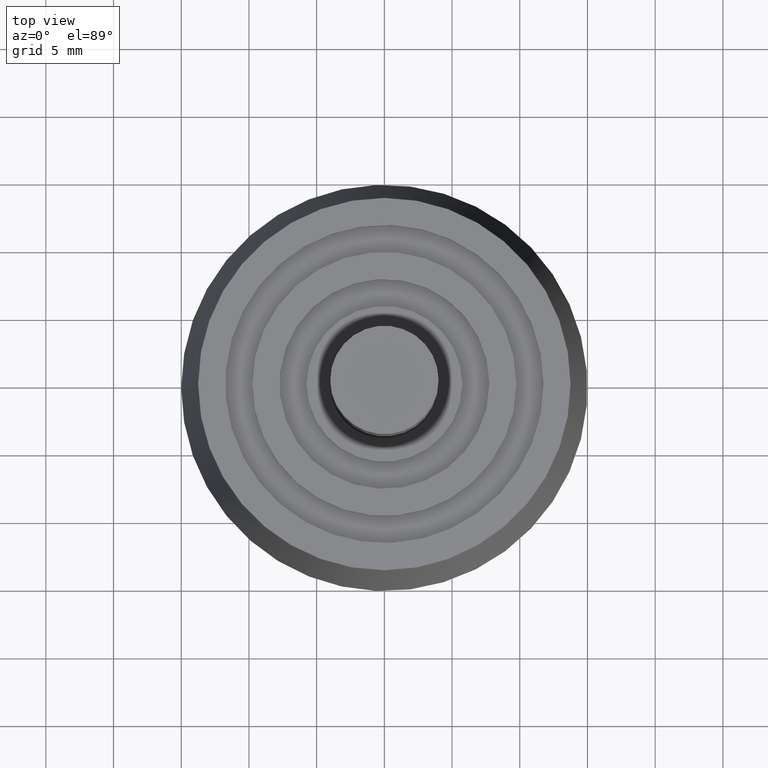
[diagram: clean part render]
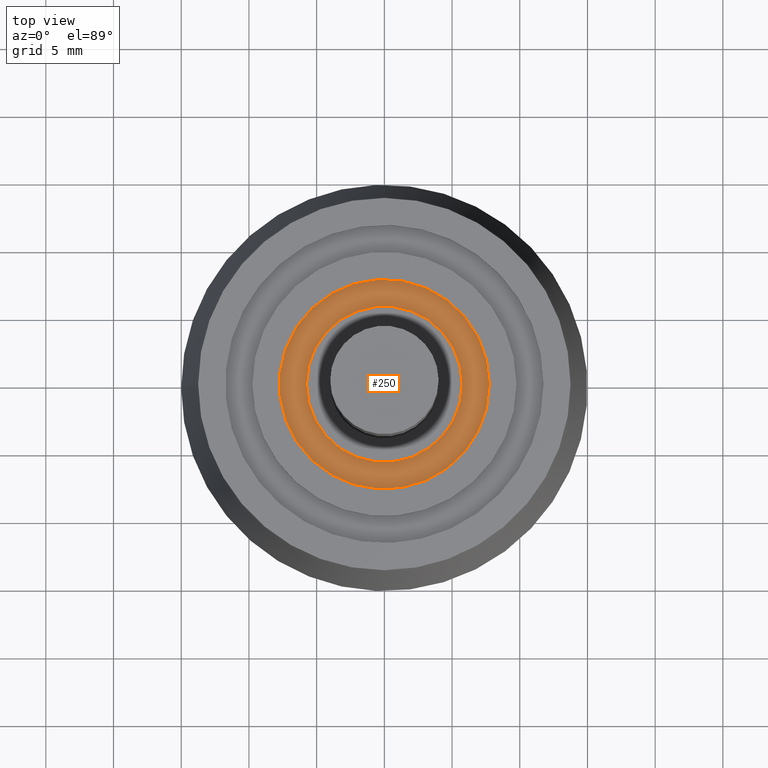
[diagram: same view with one face highlighted and labeled with its STEP entity id]
A machine part, top view. The second image highlights one B-rep face of the part: STEP entity #250.
In plain terms, the highlighted planar face has unit normal (0, 0, 1).
Its self-contained STEP definition (entity closure, byte-faithful):
#22=PLANE('',#292);
#40=FACE_BOUND('',#99,.T.);
#63=FACE_OUTER_BOUND('',#98,.T.);
#98=EDGE_LOOP('',(#208));
#99=EDGE_LOOP('',(#209));
#129=CIRCLE('',#287,5.75);
#131=CIRCLE('',#290,7.75);
#151=VERTEX_POINT('',#438);
#153=VERTEX_POINT('',#443);
#173=EDGE_CURVE('',#151,#151,#129,.T.);
#175=EDGE_CURVE('',#153,#153,#131,.T.);
#208=ORIENTED_EDGE('',*,*,#175,.F.);
#209=ORIENTED_EDGE('',*,*,#173,.F.);
#250=ADVANCED_FACE('',(#63,#40),#22,.T.);
#287=AXIS2_PLACEMENT_3D('',#439,#360,#361);
#290=AXIS2_PLACEMENT_3D('',#444,#366,#367);
#292=AXIS2_PLACEMENT_3D('',#447,#370,#371);
#360=DIRECTION('center_axis',(0.,0.,1.));
#361=DIRECTION('ref_axis',(-1.,0.,0.));
#366=DIRECTION('center_axis',(0.,0.,-1.));
#367=DIRECTION('ref_axis',(-1.,0.,0.));
#370=DIRECTION('center_axis',(0.,0.,1.));
#371=DIRECTION('ref_axis',(1.,0.,0.));
#438=CARTESIAN_POINT('',(5.75,7.04171909509728E-16,15.5));
#439=CARTESIAN_POINT('Origin',(0.,0.,15.5));
#443=CARTESIAN_POINT('',(7.75,9.49101269339199E-16,15.5));
#444=CARTESIAN_POINT('Origin',(0.,0.,15.5));
#447=CARTESIAN_POINT('Origin',(-5.56607051853603E-16,0.,15.5));